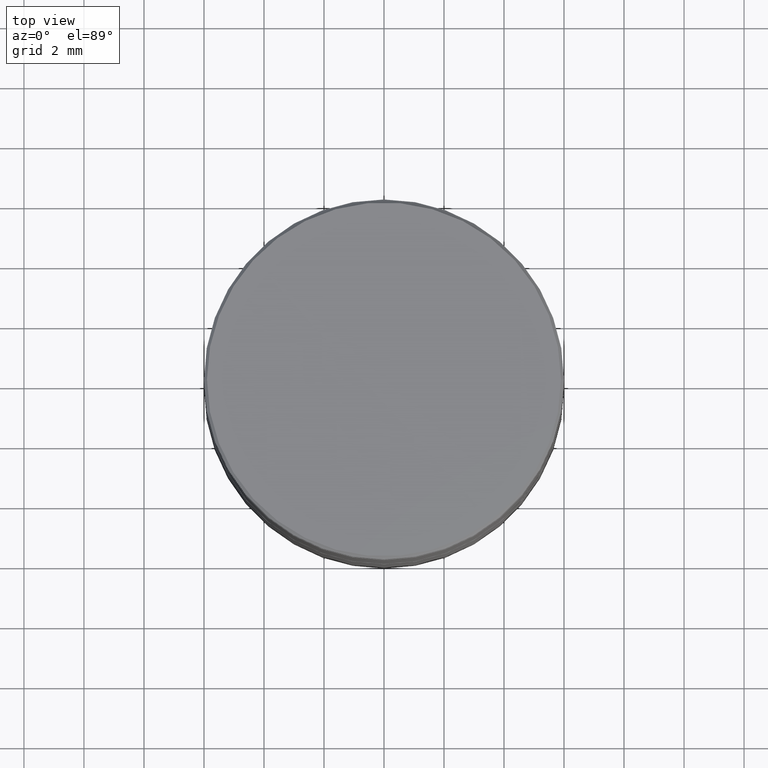
[diagram: clean part render]
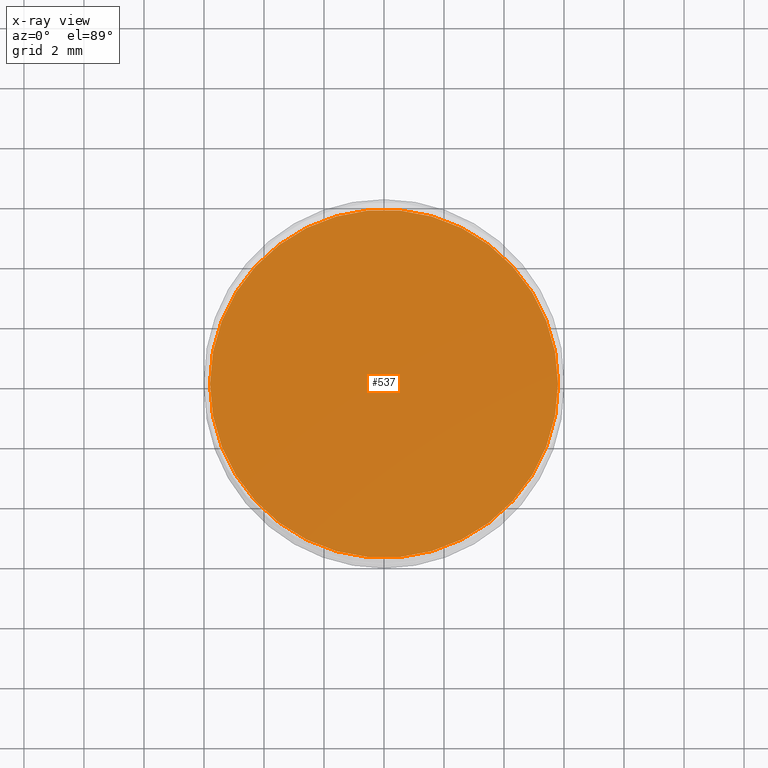
[diagram: x-ray — body ghosted, one internal face saturated and labeled with its STEP entity id]
A machine part, top view, then the same camera in x-ray: the body is ghosted and one INTERNAL B-rep face — a face not visible from any outside direction — is saturated and labeled: STEP entity #537.
In plain terms, the highlighted planar face has unit normal (0, 0, -1).
Its self-contained STEP definition (entity closure, byte-faithful):
#11 = DIRECTION ( 'NONE',  ( -1.000000000000000000, 0.000000000000000000, 0.000000000000000000 ) ) ;
#45 = EDGE_LOOP ( 'NONE', ( #311, #534 ) ) ;
#70 = AXIS2_PLACEMENT_3D ( 'NONE', #864, #1025, #345 ) ;
#95 = CARTESIAN_POINT ( 'NONE',  ( 0.000000000000000000, 0.000000000000000000, -8.500000000000000000 ) ) ;
#195 = VERTEX_POINT ( 'NONE', #353 ) ;
#261 = EDGE_CURVE ( 'NONE', #195, #843, #999, .T. ) ;
#311 = ORIENTED_EDGE ( 'NONE', *, *, #261, .T. ) ;
#345 = DIRECTION ( 'NONE',  ( -1.000000000000000000, 0.000000000000000000, 0.000000000000000000 ) ) ;
#353 = CARTESIAN_POINT ( 'NONE',  ( -5.800000000000001599, 0.000000000000000000, -8.500000000000000000 ) ) ;
#359 = CARTESIAN_POINT ( 'NONE',  ( 5.800000000000001599, 7.225416114969385180E-16, -8.500000000000000000 ) ) ;
#375 = FACE_OUTER_BOUND ( 'NONE', #45, .T. ) ;
#529 = CARTESIAN_POINT ( 'NONE',  ( 0.000000000000000000, 0.000000000000000000, -8.500000000000000000 ) ) ;
#534 = ORIENTED_EDGE ( 'NONE', *, *, #827, .T. ) ;
#537 = ADVANCED_FACE ( 'NONE', ( #375 ), #770, .F. ) ;
#616 = DIRECTION ( 'NONE',  ( -1.000000000000000000, 0.000000000000000000, -0.000000000000000000 ) ) ;
#728 = DIRECTION ( 'NONE',  ( -0.000000000000000000, -0.000000000000000000, 1.000000000000000000 ) ) ;
#770 = PLANE ( 'NONE',  #816 ) ;
#774 = DIRECTION ( 'NONE',  ( 0.000000000000000000, 0.000000000000000000, -1.000000000000000000 ) ) ;
#816 = AXIS2_PLACEMENT_3D ( 'NONE', #529, #774, #616 ) ;
#827 = EDGE_CURVE ( 'NONE', #843, #195, #847, .T. ) ;
#843 = VERTEX_POINT ( 'NONE', #359 ) ;
#847 = CIRCLE ( 'NONE', #997, 5.800000000000001599 ) ;
#864 = CARTESIAN_POINT ( 'NONE',  ( 0.000000000000000000, 0.000000000000000000, -8.500000000000000000 ) ) ;
#997 = AXIS2_PLACEMENT_3D ( 'NONE', #95, #728, #11 ) ;
#999 = CIRCLE ( 'NONE', #70, 5.800000000000001599 ) ;
#1025 = DIRECTION ( 'NONE',  ( -0.000000000000000000, -0.000000000000000000, 1.000000000000000000 ) ) ;